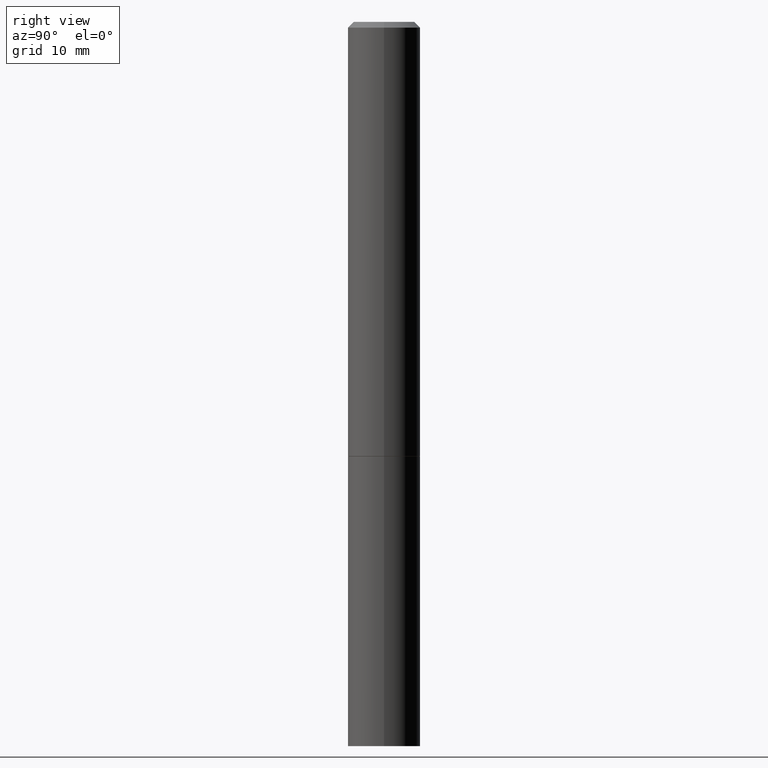
[diagram: clean part render]
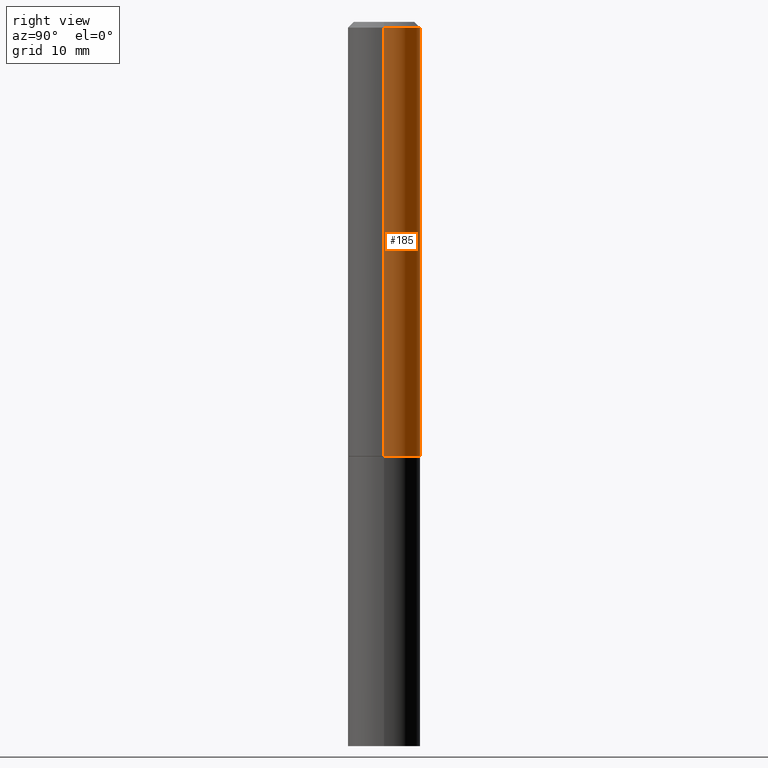
[diagram: same view with one face highlighted and labeled with its STEP entity id]
A machine part, right view. The second image highlights one B-rep face of the part: STEP entity #185.
In plain terms, the highlighted cylindrical surface (edge-blend (fillet) strip) has radius 3.175 mm, axis along (-0, 0, 1).
Its self-contained STEP definition (entity closure, byte-faithful):
#2 = VERTEX_POINT ( 'NONE', #67 ) ;
#13 = CARTESIAN_POINT ( 'NONE',  ( 0.1250000000000000000, -6.106600861636658508E-15, -1.499000000000000110 ) ) ;
#31 = ORIENTED_EDGE ( 'NONE', *, *, #196, .T. ) ;
#34 = CARTESIAN_POINT ( 'NONE',  ( -0.1250000000000000278, -1.763601657151242227E-15, -1.499000000000000110 ) ) ;
#43 = DIRECTION ( 'NONE',  ( -2.445468806185136597E-29, 3.491481338843145583E-15, 1.000000000000000000 ) ) ;
#44 = CARTESIAN_POINT ( 'NONE',  ( -0.1249999999999997780, 8.030407079339186601E-16, -0.02000000000000004552 ) ) ;
#47 = CARTESIAN_POINT ( 'NONE',  ( 3.665757740471519853E-29, -5.233730526925875958E-15, -1.499000000000000110 ) ) ;
#49 = VERTEX_POINT ( 'NONE', #13 ) ;
#53 = AXIS2_PLACEMENT_3D ( 'NONE', #268, #43, #295 ) ;
#58 = DIRECTION ( 'NONE',  ( -2.445468806185136597E-29, 3.491481338843145583E-15, 1.000000000000000000 ) ) ;
#67 = CARTESIAN_POINT ( 'NONE',  ( 0.1249999999999997780, -9.273918764983029686E-16, -0.02000000000000004552 ) ) ;
#82 = AXIS2_PLACEMENT_3D ( 'NONE', #186, #58, #145 ) ;
#88 = ORIENTED_EDGE ( 'NONE', *, *, #319, .F. ) ;
#92 = EDGE_LOOP ( 'NONE', ( #281, #31, #165, #88 ) ) ;
#102 = CIRCLE ( 'NONE', #82, 0.1249999999999997780 ) ;
#122 = DIRECTION ( 'NONE',  ( 1.000000000000000000, -6.982962677686262766E-15, 0.000000000000000000 ) ) ;
#128 = DIRECTION ( 'NONE',  ( -2.445468806185136877E-29, 3.491481338843145188E-15, 1.000000000000000000 ) ) ;
#145 = DIRECTION ( 'NONE',  ( 1.000000000000000000, -6.982962677686266711E-15, 0.000000000000000000 ) ) ;
#165 = ORIENTED_EDGE ( 'NONE', *, *, #170, .F. ) ;
#168 = FACE_OUTER_BOUND ( 'NONE', #92, .T. ) ;
#170 = EDGE_CURVE ( 'NONE', #2, #224, #102, .T. ) ;
#176 = VECTOR ( 'NONE', #326, 39.37007874015748143 ) ;
#185 = ADVANCED_FACE ( 'NONE', ( #168 ), #335, .T. ) ;
#186 = CARTESIAN_POINT ( 'NONE',  ( 4.890937612370284544E-31, -6.982962677686307633E-17, -0.02000000000000004552 ) ) ;
#193 = LINE ( 'NONE', #366, #267 ) ;
#196 = EDGE_CURVE ( 'NONE', #239, #224, #317, .T. ) ;
#224 = VERTEX_POINT ( 'NONE', #44 ) ;
#239 = VERTEX_POINT ( 'NONE', #34 ) ;
#241 = CIRCLE ( 'NONE', #353, 0.1250000000000000000 ) ;
#263 = DIRECTION ( 'NONE',  ( -2.445468806185136597E-29, 3.491481338843145583E-15, 1.000000000000000000 ) ) ;
#267 = VECTOR ( 'NONE', #128, 39.37007874015748143 ) ;
#268 = CARTESIAN_POINT ( 'NONE',  ( 0.000000000000000000, 0.000000000000000000, 0.000000000000000000 ) ) ;
#276 = EDGE_CURVE ( 'NONE', #49, #239, #241, .T. ) ;
#281 = ORIENTED_EDGE ( 'NONE', *, *, #276, .T. ) ;
#295 = DIRECTION ( 'NONE',  ( 1.000000000000000000, -6.982962677686266711E-15, 4.876176775795935793E-29 ) ) ;
#317 = LINE ( 'NONE', #321, #176 ) ;
#319 = EDGE_CURVE ( 'NONE', #49, #2, #193, .T. ) ;
#321 = CARTESIAN_POINT ( 'NONE',  ( -0.1249999999999999029, 8.881784197001245421E-16, -6.148668862818627323E-30 ) ) ;
#326 = DIRECTION ( 'NONE',  ( -2.445468806185136877E-29, 3.491481338843145188E-15, 1.000000000000000000 ) ) ;
#335 = CYLINDRICAL_SURFACE ( 'NONE', #53, 0.1249999999999999029 ) ;
#353 = AXIS2_PLACEMENT_3D ( 'NONE', #47, #263, #122 ) ;
#366 = CARTESIAN_POINT ( 'NONE',  ( 0.1249999999999999029, -8.728703347107826486E-16, 6.095220969744914837E-30 ) ) ;